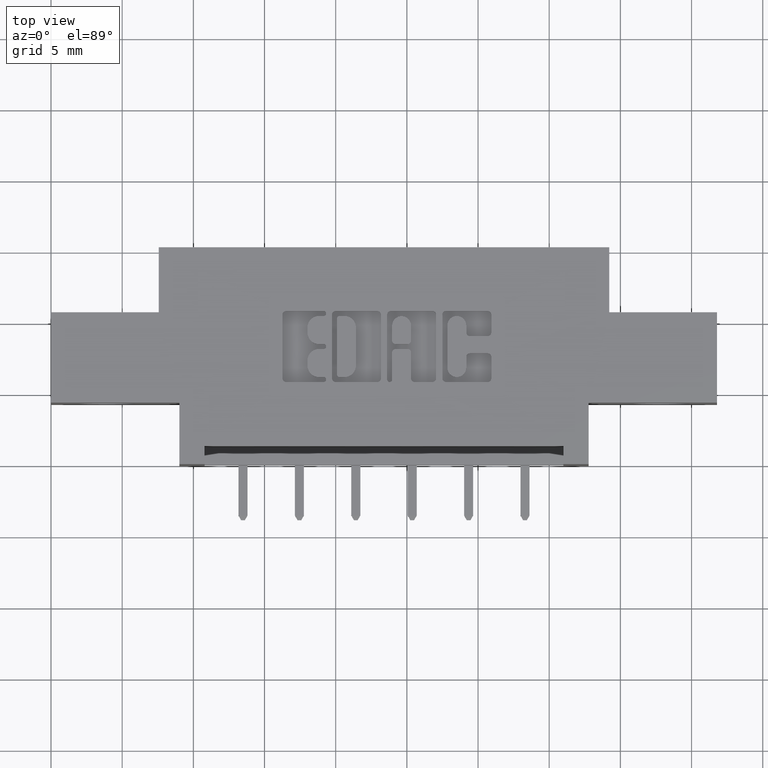
[diagram: clean part render]
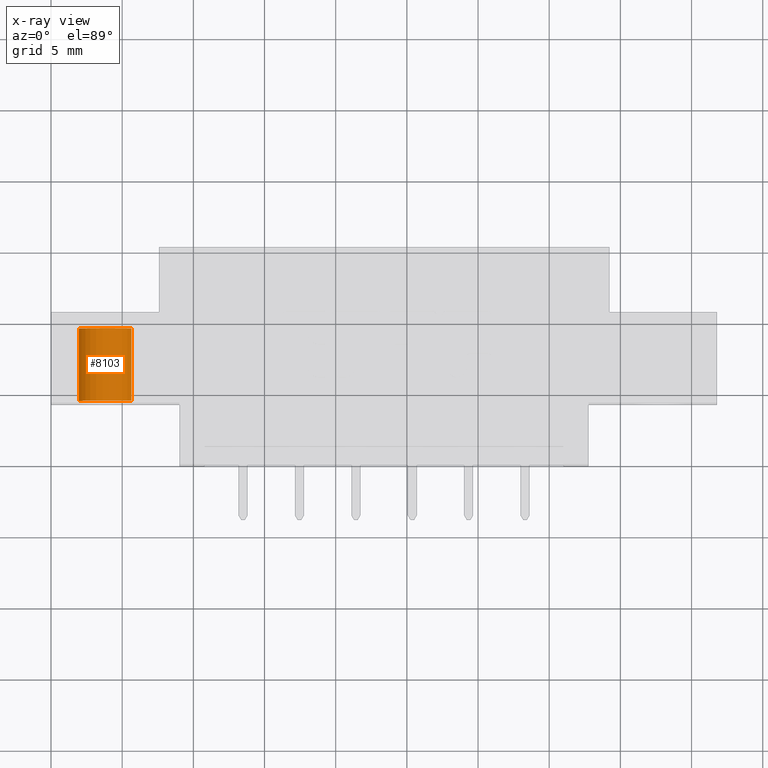
[diagram: x-ray — body ghosted, one internal face saturated and labeled with its STEP entity id]
A machine part, top view, then the same camera in x-ray: the body is ghosted and one INTERNAL B-rep face — a face not visible from any outside direction — is saturated and labeled: STEP entity #8103.
In plain terms, the highlighted cylindrical surface (edge-blend (fillet) strip) has radius 1.9685 mm, axis along (0, 1, -0).
Its self-contained STEP definition (entity closure, byte-faithful):
#102 = CIRCLE ( 'NONE', #3567, 0.07749999999999999900 ) ;
#215 = CARTESIAN_POINT ( 'NONE',  ( 0.0000000000000000000, 0.2400000000000000500, 0.0000000000000000000 ) ) ;
#782 = AXIS2_PLACEMENT_3D ( 'NONE', #10139, #8228, #5778 ) ;
#1047 = CARTESIAN_POINT ( 'NONE',  ( 9.491012693391986400E-018, 0.04000000000000000100, 0.07749999999999999900 ) ) ;
#1268 = VERTEX_POINT ( 'NONE', #10435 ) ;
#1709 = EDGE_CURVE ( 'NONE', #9959, #1268, #102, .T. ) ;
#1744 = EDGE_LOOP ( 'NONE', ( #6026, #5070, #3638, #5225 ) ) ;
#1950 = VECTOR ( 'NONE', #2300, 39.37007874015748100 ) ;
#1958 = LINE ( 'NONE', #3895, #1950 ) ;
#2300 = DIRECTION ( 'NONE',  ( -0.0000000000000000000, -1.000000000000000000, -0.0000000000000000000 ) ) ;
#2576 = AXIS2_PLACEMENT_3D ( 'NONE', #4473, #9892, #5354 ) ;
#3153 = CIRCLE ( 'NONE', #2576, 0.07749999999999999900 ) ;
#3181 = VECTOR ( 'NONE', #7857, 39.37007874015748100 ) ;
#3367 = LINE ( 'NONE', #8611, #3181 ) ;
#3567 = AXIS2_PLACEMENT_3D ( 'NONE', #215, #3644, #3604 ) ;
#3604 = DIRECTION ( 'NONE',  ( 0.0000000000000000000, 0.0000000000000000000, 1.000000000000000000 ) ) ;
#3638 = ORIENTED_EDGE ( 'NONE', *, *, #9788, .T. ) ;
#3644 = DIRECTION ( 'NONE',  ( 0.0000000000000000000, 1.000000000000000000, 0.0000000000000000000 ) ) ;
#3895 = CARTESIAN_POINT ( 'NONE',  ( 9.491012693391986400E-018, 0.2400000000000000500, 0.07749999999999999900 ) ) ;
#4473 = CARTESIAN_POINT ( 'NONE',  ( 0.0000000000000000000, 0.04000000000000000100, 0.0000000000000000000 ) ) ;
#4628 = CYLINDRICAL_SURFACE ( 'NONE', #782, 0.07749999999999999900 ) ;
#4974 = EDGE_CURVE ( 'NONE', #9959, #10035, #1958, .T. ) ;
#5070 = ORIENTED_EDGE ( 'NONE', *, *, #4974, .T. ) ;
#5225 = ORIENTED_EDGE ( 'NONE', *, *, #8530, .F. ) ;
#5332 = FACE_OUTER_BOUND ( 'NONE', #1744, .T. ) ;
#5354 = DIRECTION ( 'NONE',  ( 0.0000000000000000000, 0.0000000000000000000, 1.000000000000000000 ) ) ;
#5778 = DIRECTION ( 'NONE',  ( 0.0000000000000000000, 0.0000000000000000000, -1.000000000000000000 ) ) ;
#6026 = ORIENTED_EDGE ( 'NONE', *, *, #1709, .F. ) ;
#6211 = VERTEX_POINT ( 'NONE', #7951 ) ;
#6465 = CARTESIAN_POINT ( 'NONE',  ( 9.491012693391986400E-018, 0.2400000000000000500, 0.07749999999999999900 ) ) ;
#7857 = DIRECTION ( 'NONE',  ( -0.0000000000000000000, -1.000000000000000000, -0.0000000000000000000 ) ) ;
#7951 = CARTESIAN_POINT ( 'NONE',  ( 0.0000000000000000000, 0.04000000000000000100, -0.07749999999999999900 ) ) ;
#8103 = ADVANCED_FACE ( 'NONE', ( #5332 ), #4628, .T. ) ;
#8228 = DIRECTION ( 'NONE',  ( -0.0000000000000000000, -1.000000000000000000, -0.0000000000000000000 ) ) ;
#8530 = EDGE_CURVE ( 'NONE', #1268, #6211, #3367, .T. ) ;
#8611 = CARTESIAN_POINT ( 'NONE',  ( 0.0000000000000000000, 0.2400000000000000500, -0.07749999999999999900 ) ) ;
#9788 = EDGE_CURVE ( 'NONE', #10035, #6211, #3153, .T. ) ;
#9892 = DIRECTION ( 'NONE',  ( 0.0000000000000000000, 1.000000000000000000, 0.0000000000000000000 ) ) ;
#9959 = VERTEX_POINT ( 'NONE', #6465 ) ;
#10035 = VERTEX_POINT ( 'NONE', #1047 ) ;
#10139 = CARTESIAN_POINT ( 'NONE',  ( 0.0000000000000000000, 0.2400000000000000500, 0.0000000000000000000 ) ) ;
#10435 = CARTESIAN_POINT ( 'NONE',  ( 0.0000000000000000000, 0.2400000000000000500, -0.07749999999999999900 ) ) ;